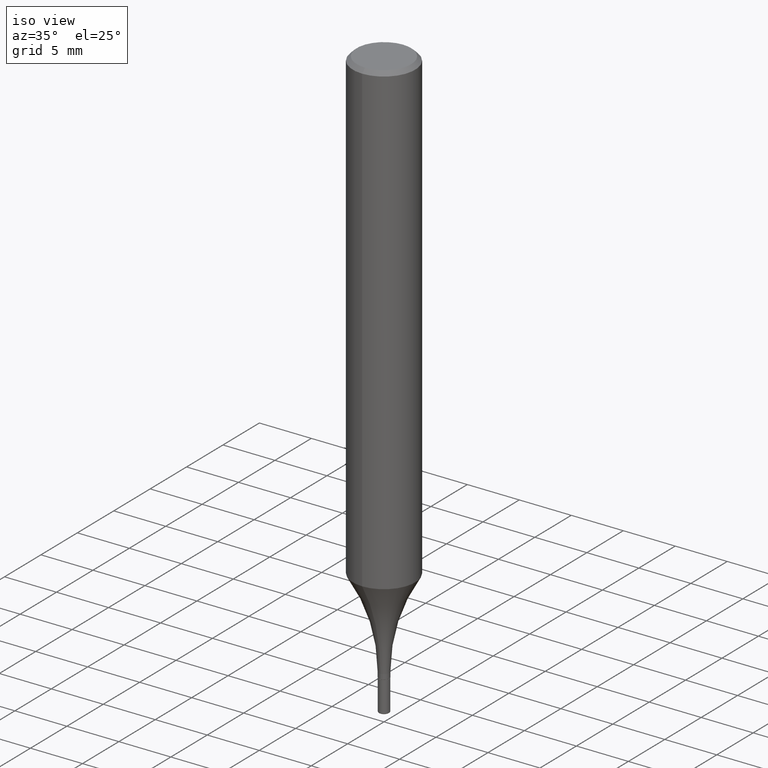
[diagram: clean part render]
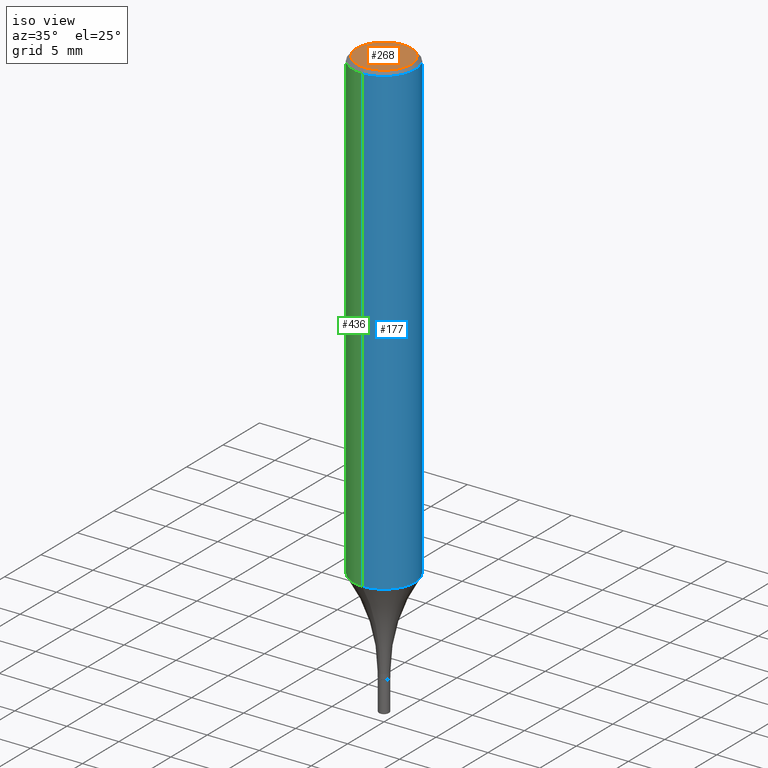
[diagram: same view with three faces highlighted in distinct colors, each labeled with its STEP entity id]
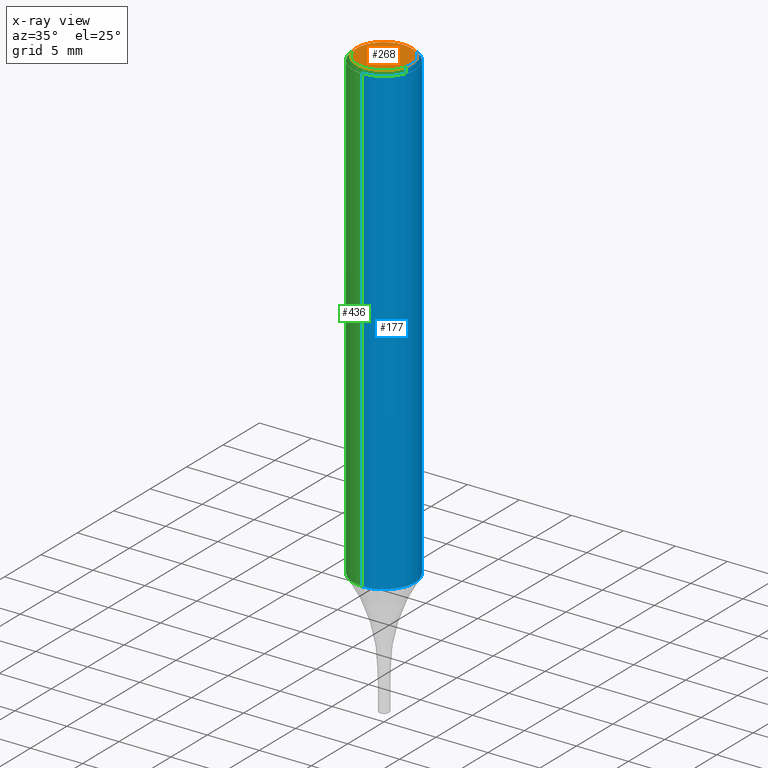
[diagram: x-ray of the same camera — body ghosted, the three highlighted faces saturated]
A machine part, iso view with three faces highlighted in distinct colors.
The next image is the same camera in x-ray (body ghosted, the three faces saturated) — at least one of them is partly hidden behind the body in this view.
Their STEP definitions:

[orange] entity #268 — the highlighted planar face has unit normal (0, -0, -1).
#6 = DIRECTION ( 'NONE',  ( -2.447417103121389327E-29, 3.488691266740256803E-15, 1.000000000000000000 ) ) ;
#7 = CARTESIAN_POINT ( 'NONE',  ( 7.723156721521011834E-16, 0.1031000000000000111, -8.678692666830198749E-17 ) ) ;
#51 = PLANE ( 'NONE',  #458 ) ;
#59 = DIRECTION ( 'NONE',  ( -2.447417103121389327E-29, 3.488691266740256803E-15, 1.000000000000000000 ) ) ;
#126 = DIRECTION ( 'NONE',  ( 2.447417103121388767E-29, -3.488691266740256803E-15, -1.000000000000000000 ) ) ;
#136 = EDGE_CURVE ( 'NONE', #513, #193, #421, .T. ) ;
#167 = AXIS2_PLACEMENT_3D ( 'NONE', #217, #59, #209 ) ;
#193 = VERTEX_POINT ( 'NONE', #7 ) ;
#209 = DIRECTION ( 'NONE',  ( -6.982962677686265922E-15, -1.000000000000000000, 3.488691266740255619E-15 ) ) ;
#217 = CARTESIAN_POINT ( 'NONE',  ( -6.678931350062527818E-45, 9.520538792673935931E-31, 2.728971429326184979E-16 ) ) ;
#241 = DIRECTION ( 'NONE',  ( -6.982962677686265922E-15, -1.000000000000000000, 3.488691266740255619E-15 ) ) ;
#268 = ADVANCED_FACE ( 'NONE', ( #282 ), #51, .F. ) ;
#282 = FACE_OUTER_BOUND ( 'NONE', #327, .T. ) ;
#314 = ORIENTED_EDGE ( 'NONE', *, *, #386, .T. ) ;
#326 = CARTESIAN_POINT ( 'NONE',  ( -6.678931350062527818E-45, 9.520538792673935931E-31, 2.728971429326184979E-16 ) ) ;
#327 = EDGE_LOOP ( 'NONE', ( #314, #358 ) ) ;
#358 = ORIENTED_EDGE ( 'NONE', *, *, #136, .T. ) ;
#386 = EDGE_CURVE ( 'NONE', #193, #513, #416, .T. ) ;
#398 = AXIS2_PLACEMENT_3D ( 'NONE', #326, #6, #241 ) ;
#416 = CIRCLE ( 'NONE', #167, 0.1031000000000000111 ) ;
#421 = CIRCLE ( 'NONE', #398, 0.1031000000000000111 ) ;
#425 = CARTESIAN_POINT ( 'NONE',  ( -7.587710785535310407E-16, -0.1031000000000000111, 6.325812125335389093E-16 ) ) ;
#447 = DIRECTION ( 'NONE',  ( 6.982962677686265922E-15, 1.000000000000000000, -3.488691266740256803E-15 ) ) ;
#458 = AXIS2_PLACEMENT_3D ( 'NONE', #491, #126, #447 ) ;
#491 = CARTESIAN_POINT ( 'NONE',  ( 7.199434520694541042E-16, 0.1031000000000000111, -2.232354981346112118E-16 ) ) ;
#513 = VERTEX_POINT ( 'NONE', #425 ) ;

[blue] entity #177 — the highlighted cylindrical surface (partial cylindrical patch) has radius 2.9997 mm, axis along (-0, 0, 1).
#3 = DIRECTION ( 'NONE',  ( -6.982962677686265922E-15, -1.000000000000000000, 4.626330217890367758E-15 ) ) ;
#5 = VECTOR ( 'NONE', #80, 39.37007874015748143 ) ;
#20 = ORIENTED_EDGE ( 'NONE', *, *, #250, .F. ) ;
#55 = CARTESIAN_POINT ( 'NONE',  ( -8.246878922347480654E-16, -0.1181000000000000105, 4.120144386020243897E-16 ) ) ;
#56 = AXIS2_PLACEMENT_3D ( 'NONE', #159, #366, #482 ) ;
#80 = DIRECTION ( 'NONE',  ( -2.447417103121389327E-29, 3.488691266740256803E-15, 1.000000000000000000 ) ) ;
#86 = DIRECTION ( 'NONE',  ( -2.447417103121389327E-29, 3.488691266740256803E-15, 1.000000000000000000 ) ) ;
#95 = LINE ( 'NONE', #55, #129 ) ;
#102 = AXIS2_PLACEMENT_3D ( 'NONE', #321, #86, #207 ) ;
#110 = VERTEX_POINT ( 'NONE', #283 ) ;
#129 = VECTOR ( 'NONE', #418, 39.37007874015748143 ) ;
#134 = EDGE_CURVE ( 'NONE', #317, #511, #479, .T. ) ;
#156 = FACE_OUTER_BOUND ( 'NONE', #190, .T. ) ;
#159 = CARTESIAN_POINT ( 'NONE',  ( 0.000000000000000000, 0.000000000000000000, 0.000000000000000000 ) ) ;
#177 = ADVANCED_FACE ( 'NONE', ( #156 ), #270, .T. ) ;
#190 = EDGE_LOOP ( 'NONE', ( #245, #262, #20, #519 ) ) ;
#198 = CARTESIAN_POINT ( 'NONE',  ( 4.330639563837398876E-29, -6.173146541507197219E-15, -1.769473441332980679 ) ) ;
#207 = DIRECTION ( 'NONE',  ( -6.982962677686265922E-15, -1.000000000000000000, 3.487819265831411744E-15 ) ) ;
#233 = EDGE_CURVE ( 'NONE', #488, #317, #388, .T. ) ;
#245 = ORIENTED_EDGE ( 'NONE', *, *, #233, .T. ) ;
#250 = EDGE_CURVE ( 'NONE', #110, #511, #516, .T. ) ;
#262 = ORIENTED_EDGE ( 'NONE', *, *, #134, .T. ) ;
#270 = CYLINDRICAL_SURFACE ( 'NONE', #56, 0.1181000000000000105 ) ;
#273 = CARTESIAN_POINT ( 'NONE',  ( 8.391509709326782957E-16, 0.1181000000000000105, -4.120144386020243897E-16 ) ) ;
#281 = DIRECTION ( 'NONE',  ( -2.447417103121389327E-29, 3.488691266740256803E-15, 1.000000000000000000 ) ) ;
#283 = CARTESIAN_POINT ( 'NONE',  ( -8.102248135368174406E-16, -0.1181000000000000522, -0.01499999999999927260 ) ) ;
#297 = AXIS2_PLACEMENT_3D ( 'NONE', #198, #281, #3 ) ;
#317 = VERTEX_POINT ( 'NONE', #497 ) ;
#321 = CARTESIAN_POINT ( 'NONE',  ( 3.671125654682006797E-31, -5.233036900110274566E-17, -0.01499999999999968373 ) ) ;
#340 = CARTESIAN_POINT ( 'NONE',  ( 8.246878922347483612E-16, 0.1180999999999999411, -0.01500000000000009659 ) ) ;
#366 = DIRECTION ( 'NONE',  ( -2.447417103121389327E-29, 3.488691266740256803E-15, 1.000000000000000000 ) ) ;
#385 = EDGE_CURVE ( 'NONE', #488, #110, #95, .T. ) ;
#388 = CIRCLE ( 'NONE', #297, 0.1181000000000000383 ) ;
#389 = CARTESIAN_POINT ( 'NONE',  ( -8.246878922347047766E-16, -0.1181000000000062278, -1.769473441332980013 ) ) ;
#418 = DIRECTION ( 'NONE',  ( -2.447417103121389327E-29, 3.488691266740256803E-15, 1.000000000000000000 ) ) ;
#479 = LINE ( 'NONE', #273, #5 ) ;
#482 = DIRECTION ( 'NONE',  ( -6.982962677686265922E-15, -1.000000000000000000, 3.488691266740257197E-15 ) ) ;
#488 = VERTEX_POINT ( 'NONE', #389 ) ;
#497 = CARTESIAN_POINT ( 'NONE',  ( 8.391509709327214858E-16, 0.1180999999999938072, -1.769473441332981123 ) ) ;
#511 = VERTEX_POINT ( 'NONE', #340 ) ;
#516 = CIRCLE ( 'NONE', #102, 0.1180999999999999966 ) ;
#519 = ORIENTED_EDGE ( 'NONE', *, *, #385, .F. ) ;

[green] entity #436 — the highlighted cylindrical surface (partial cylindrical patch) has radius 2.9997 mm, axis along (-0, 0, 1).
#5 = VECTOR ( 'NONE', #80, 39.37007874015748143 ) ;
#21 = CYLINDRICAL_SURFACE ( 'NONE', #260, 0.1181000000000000105 ) ;
#43 = EDGE_LOOP ( 'NONE', ( #437, #343, #117, #228 ) ) ;
#50 = DIRECTION ( 'NONE',  ( -6.982962677686265922E-15, -1.000000000000000000, 4.626330217890367758E-15 ) ) ;
#55 = CARTESIAN_POINT ( 'NONE',  ( -8.246878922347480654E-16, -0.1181000000000000105, 4.120144386020243897E-16 ) ) ;
#69 = AXIS2_PLACEMENT_3D ( 'NONE', #517, #90, #50 ) ;
#80 = DIRECTION ( 'NONE',  ( -2.447417103121389327E-29, 3.488691266740256803E-15, 1.000000000000000000 ) ) ;
#90 = DIRECTION ( 'NONE',  ( -2.447417103121389327E-29, 3.488691266740256803E-15, 1.000000000000000000 ) ) ;
#95 = LINE ( 'NONE', #55, #129 ) ;
#110 = VERTEX_POINT ( 'NONE', #283 ) ;
#117 = ORIENTED_EDGE ( 'NONE', *, *, #385, .T. ) ;
#125 = EDGE_CURVE ( 'NONE', #317, #488, #471, .T. ) ;
#129 = VECTOR ( 'NONE', #418, 39.37007874015748143 ) ;
#134 = EDGE_CURVE ( 'NONE', #317, #511, #479, .T. ) ;
#140 = DIRECTION ( 'NONE',  ( -6.982962677686265922E-15, -1.000000000000000000, 3.488691266740257197E-15 ) ) ;
#175 = DIRECTION ( 'NONE',  ( -2.447417103121389327E-29, 3.488691266740256803E-15, 1.000000000000000000 ) ) ;
#191 = DIRECTION ( 'NONE',  ( -2.447417103121389327E-29, 3.488691266740256803E-15, 1.000000000000000000 ) ) ;
#200 = EDGE_CURVE ( 'NONE', #511, #110, #407, .T. ) ;
#228 = ORIENTED_EDGE ( 'NONE', *, *, #200, .F. ) ;
#260 = AXIS2_PLACEMENT_3D ( 'NONE', #462, #175, #140 ) ;
#273 = CARTESIAN_POINT ( 'NONE',  ( 8.391509709326782957E-16, 0.1181000000000000105, -4.120144386020243897E-16 ) ) ;
#283 = CARTESIAN_POINT ( 'NONE',  ( -8.102248135368174406E-16, -0.1181000000000000522, -0.01499999999999927260 ) ) ;
#317 = VERTEX_POINT ( 'NONE', #497 ) ;
#340 = CARTESIAN_POINT ( 'NONE',  ( 8.246878922347483612E-16, 0.1180999999999999411, -0.01500000000000009659 ) ) ;
#343 = ORIENTED_EDGE ( 'NONE', *, *, #125, .T. ) ;
#353 = AXIS2_PLACEMENT_3D ( 'NONE', #445, #191, #359 ) ;
#359 = DIRECTION ( 'NONE',  ( -6.982962677686265922E-15, -1.000000000000000000, 3.487819265831411744E-15 ) ) ;
#376 = FACE_OUTER_BOUND ( 'NONE', #43, .T. ) ;
#385 = EDGE_CURVE ( 'NONE', #488, #110, #95, .T. ) ;
#389 = CARTESIAN_POINT ( 'NONE',  ( -8.246878922347047766E-16, -0.1181000000000062278, -1.769473441332980013 ) ) ;
#407 = CIRCLE ( 'NONE', #353, 0.1180999999999999966 ) ;
#418 = DIRECTION ( 'NONE',  ( -2.447417103121389327E-29, 3.488691266740256803E-15, 1.000000000000000000 ) ) ;
#436 = ADVANCED_FACE ( 'NONE', ( #376 ), #21, .T. ) ;
#437 = ORIENTED_EDGE ( 'NONE', *, *, #134, .F. ) ;
#445 = CARTESIAN_POINT ( 'NONE',  ( 3.671125654682006797E-31, -5.233036900110274566E-17, -0.01499999999999968373 ) ) ;
#462 = CARTESIAN_POINT ( 'NONE',  ( 0.000000000000000000, 0.000000000000000000, 0.000000000000000000 ) ) ;
#471 = CIRCLE ( 'NONE', #69, 0.1181000000000000383 ) ;
#479 = LINE ( 'NONE', #273, #5 ) ;
#488 = VERTEX_POINT ( 'NONE', #389 ) ;
#497 = CARTESIAN_POINT ( 'NONE',  ( 8.391509709327214858E-16, 0.1180999999999938072, -1.769473441332981123 ) ) ;
#511 = VERTEX_POINT ( 'NONE', #340 ) ;
#517 = CARTESIAN_POINT ( 'NONE',  ( 4.330639563837398876E-29, -6.173146541507197219E-15, -1.769473441332980679 ) ) ;